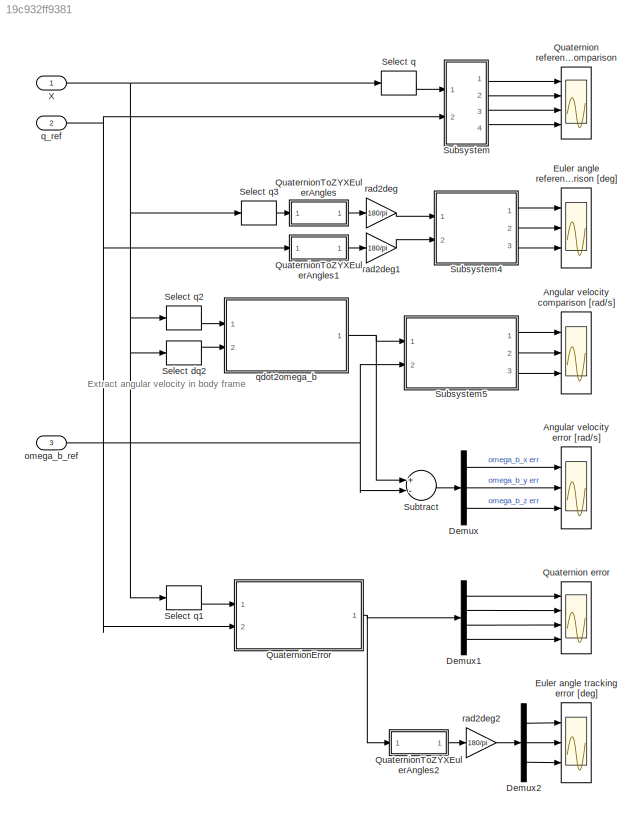
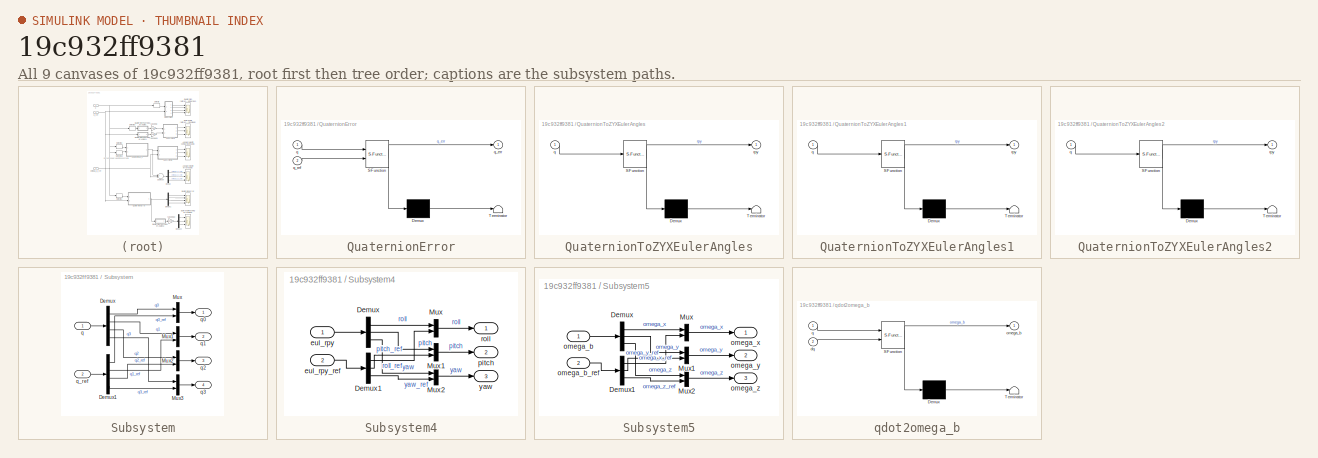
[diagram: thumbnail index - all 9 canvases of the model, root first then tree order]
MODEL slx_19c932ff9381
KIND model
CONFIG AbsTol = auto
CONFIG EnableMultiTasking = off
CONFIG FixedStep = auto
CONFIG MaxStep = auto
CONFIG MinStep = auto
CONFIG PreLoadFcn = modelDir = fileparts(get_param(bdroot, 'FileName'));\naddpath(fullfile(modelDir,'../../Misc'));
CONFIG RelTol = 1e-3
CONFIG SampleTimeConstraint = Unconstrained
CONFIG Solver = VariableStepAuto
CONFIG SolverName = VariableStepAuto
CONFIG StartTime = 0.0
CONFIG StopTime = 10.0
BLOCK [Scope] Angular velocity comparison [rad//s]
  Floating = off
  NumInputPorts = 3
  Ports = [3]
  ScopeSpecificationString = Simulink.scopes.TimeScopeBlockCfg('CurrentConfiguration', extmgr.ConfigurationSet(extmgr.Configuration('Core','General UI',true),extmgr.Configuration('Core','Source UI',true),extmgr.Configuration('Sources','WiredSimulink',true,'DataLoggingVariableName','ScopeData4'),extmgr.Configuration('Visuals','Time Domain',true,'SerializedDisplays',{struct('MinYLimReal','-0.22226','MaxYLimReal','0.19763','YLab...<+3129ch>
BLOCK [Scope] Angular velocity error [rad//s]
  Floating = off
  NumInputPorts = 3
  Ports = [3]
  ScopeSpecificationString = Simulink.scopes.TimeScopeBlockCfg('CurrentConfiguration', extmgr.ConfigurationSet(extmgr.Configuration('Core','General UI',true),extmgr.Configuration('Core','Source UI',true),extmgr.Configuration('Sources','WiredSimulink',true,'DataLoggingVariableName','ScopeData1'),extmgr.Configuration('Visuals','Time Domain',true,'SerializedDisplays',{struct('MinYLimReal','-0.60099','MaxYLimReal','0.09','YLabelR...<+3032ch>
BLOCK [Demux] Demux
  DisplayOption = bar
  Outputs = 3
  Ports = [1, 3]
BLOCK [Demux] Demux1
  DisplayOption = bar
  Ports = [1, 4]
BLOCK [Demux] Demux2
  DisplayOption = bar
  Outputs = 3
  Ports = [1, 3]
BLOCK [Scope] Euler angle reference comparison [deg]
  Floating = off
  NumInputPorts = 3
  Ports = [3]
  ScopeSpecificationString = Simulink.scopes.TimeScopeBlockCfg('CurrentConfiguration', extmgr.ConfigurationSet(extmgr.Configuration('Core','General UI',true),extmgr.Configuration('Core','Source UI',true),extmgr.Configuration('Sources','WiredSimulink',true,'DataLoggingVariableName','ScopeData5'),extmgr.Configuration('Visuals','Time Domain',true,'SerializedDisplays',{struct('MinYLimReal','-7.68613','MaxYLimReal','3.59927','YLab...<+3028ch>
BLOCK [Scope] Euler angle tracking error [deg]
  Floating = off
  NumInputPorts = 3
  Ports = [3]
  ScopeSpecificationString = Simulink.scopes.TimeScopeBlockCfg('CurrentConfiguration', extmgr.ConfigurationSet(extmgr.Configuration('Core','General UI',true),extmgr.Configuration('Core','Source UI',true),extmgr.Configuration('Sources','WiredSimulink',true,'DataLoggingVariableName','ScopeData3'),extmgr.Configuration('Visuals','Time Domain',true,'SerializedDisplays',{struct('MinYLimReal','-7.18854','MaxYLimReal','6.81311','YLab...<+2962ch>
BLOCK [Scope] Quaternion error
  Floating = off
  NumInputPorts = 4
  Ports = [4]
  ScopeSpecificationString = Simulink.scopes.TimeScopeBlockCfg('CurrentConfiguration', extmgr.ConfigurationSet(extmgr.Configuration('Core','General UI',true),extmgr.Configuration('Core','Source UI',true),extmgr.Configuration('Sources','WiredSimulink',true,'DataLoggingVariableName','ScopeData2'),extmgr.Configuration('Visuals','Time Domain',true,'SerializedDisplays',{struct('MinYLimReal','0.94837','MaxYLimReal','1.00568','YLabe...<+3688ch>
BLOCK [Scope] Quaternion reference comparison
  Floating = off
  NumInputPorts = 4
  Ports = [4]
  ScopeSpecificationString = Simulink.scopes.TimeScopeBlockCfg('CurrentConfiguration', extmgr.ConfigurationSet(extmgr.Configuration('Core','General UI',true),extmgr.Configuration('Core','Source UI',true),extmgr.Configuration('Sources','WiredSimulink',true),extmgr.Configuration('Visuals','Time Domain',true,'SerializedDisplays',{struct('MinYLimReal','0.94837','MaxYLimReal','1.00574','YLabelReal','','MinYLimMag','0.94837','MaxYL...<+3691ch>
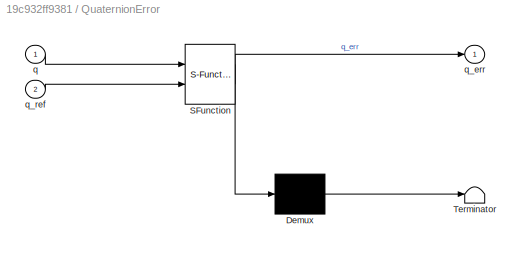
BLOCK [SubSystem] QuaternionError
  ErrorFcn = Stateflow.Translate.translate
  PermitHierarchicalResolution = ExplicitOnly
  Ports = [2, 1]
  RequestExecContextInheritance = off
  SFBlockType = MATLAB Function
  TreatAsAtomicUnit = on
BLOCK [Demux] QuaternionError/ Demux 
  Outputs = 1
  Ports = [1, 1]
BLOCK [S-Function] QuaternionError/ SFunction 
  EnableBusSupport = on
  FunctionName = sf_sfun
  PortCounts = [2 2]
  Ports = [2, 2]
  SFcnIsStateOwnerBlock = off
  SFunctionDeploymentMode = off
  Tag = Stateflow S-Function TrackingComparison 4
BLOCK [Terminator] QuaternionError/ Terminator 
BLOCK [Inport] QuaternionError/q
  IconDisplay = Port number
BLOCK [Outport] QuaternionError/q_err
  IconDisplay = Port number
BLOCK [Inport] QuaternionError/q_ref
  IconDisplay = Port number
  Port = 2
BLOCK [SubSystem] QuaternionToZYXEulerAngles
  ErrorFcn = Stateflow.Translate.translate
  PermitHierarchicalResolution = ExplicitOnly
  Ports = [1, 1]
  RequestExecContextInheritance = off
  SFBlockType = MATLAB Function
  TreatAsAtomicUnit = on
BLOCK [Demux] QuaternionToZYXEulerAngles/ Demux 
  Outputs = 1
  Ports = [1, 1]
BLOCK [S-Function] QuaternionToZYXEulerAngles/ SFunction 
  EnableBusSupport = on
  FunctionName = sf_sfun
  PortCounts = [1 2]
  Ports = [1, 2]
  SFcnIsStateOwnerBlock = off
  SFunctionDeploymentMode = off
  Tag = Stateflow S-Function TrackingComparison 1
BLOCK [Terminator] QuaternionToZYXEulerAngles/ Terminator 
BLOCK [Inport] QuaternionToZYXEulerAngles/q
  IconDisplay = Port number
BLOCK [Outport] QuaternionToZYXEulerAngles/rpy
  IconDisplay = Port number
BLOCK [SubSystem] QuaternionToZYXEulerAngles1
  ErrorFcn = Stateflow.Translate.translate
  PermitHierarchicalResolution = ExplicitOnly
  Ports = [1, 1]
  RequestExecContextInheritance = off
  SFBlockType = MATLAB Function
  TreatAsAtomicUnit = on
BLOCK [Demux] QuaternionToZYXEulerAngles1/ Demux 
  Outputs = 1
  Ports = [1, 1]
BLOCK [S-Function] QuaternionToZYXEulerAngles1/ SFunction 
  EnableBusSupport = on
  FunctionName = sf_sfun
  PortCounts = [1 2]
  Ports = [1, 2]
  SFcnIsStateOwnerBlock = off
  SFunctionDeploymentMode = off
  Tag = Stateflow S-Function TrackingComparison 2
BLOCK [Terminator] QuaternionToZYXEulerAngles1/ Terminator 
BLOCK [Inport] QuaternionToZYXEulerAngles1/q
  IconDisplay = Port number
BLOCK [Outport] QuaternionToZYXEulerAngles1/rpy
  IconDisplay = Port number
BLOCK [SubSystem] QuaternionToZYXEulerAngles2
  ErrorFcn = Stateflow.Translate.translate
  PermitHierarchicalResolution = ExplicitOnly
  Ports = [1, 1]
  RequestExecContextInheritance = off
  SFBlockType = MATLAB Function
  TreatAsAtomicUnit = on
BLOCK [Demux] QuaternionToZYXEulerAngles2/ Demux 
  Outputs = 1
  Ports = [1, 1]
BLOCK [S-Function] QuaternionToZYXEulerAngles2/ SFunction 
  EnableBusSupport = on
  FunctionName = sf_sfun
  PortCounts = [1 2]
  Ports = [1, 2]
  SFcnIsStateOwnerBlock = off
  SFunctionDeploymentMode = off
  Tag = Stateflow S-Function TrackingComparison 5
BLOCK [Terminator] QuaternionToZYXEulerAngles2/ Terminator 
BLOCK [Inport] QuaternionToZYXEulerAngles2/q
  IconDisplay = Port number
BLOCK [Outport] QuaternionToZYXEulerAngles2/rpy
  IconDisplay = Port number
BLOCK [Selector] Select dq2
  IndexOptions = Index vector (dialog)
  Indices = [9,10,11,12]
  InputPortWidth = 12
  OutputSizes = 1
  Ports = [1, 1]
BLOCK [Selector] Select q
  IndexOptions = Index vector (dialog)
  Indices = [3,4,5,6]
  InputPortWidth = 12
  OutputSizes = 1
  Ports = [1, 1]
BLOCK [Selector] Select q1
  IndexOptions = Index vector (dialog)
  Indices = [3,4,5,6]
  InputPortWidth = 12
  OutputSizes = 1
  Ports = [1, 1]
BLOCK [Selector] Select q2
  IndexOptions = Index vector (dialog)
  Indices = [3,4,5,6]
  InputPortWidth = 12
  OutputSizes = 1
  Ports = [1, 1]
BLOCK [Selector] Select q3
  IndexOptions = Index vector (dialog)
  Indices = [3,4,5,6]
  InputPortWidth = 12
  OutputSizes = 1
  Ports = [1, 1]
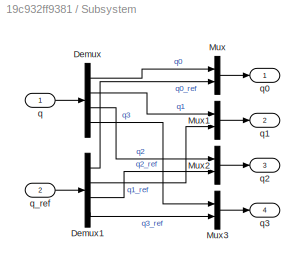
BLOCK [SubSystem] Subsystem
  Ports = [2, 4]
  RequestExecContextInheritance = off
BLOCK [Demux] Subsystem/Demux
  DisplayOption = bar
  Ports = [1, 4]
BLOCK [Demux] Subsystem/Demux1
  DisplayOption = bar
  Ports = [1, 4]
BLOCK [Mux] Subsystem/Mux
  DisplayOption = bar
  Inputs = 2
  Ports = [2, 1]
BLOCK [Mux] Subsystem/Mux1
  DisplayOption = bar
  Inputs = 2
  Ports = [2, 1]
BLOCK [Mux] Subsystem/Mux2
  DisplayOption = bar
  Inputs = 2
  Ports = [2, 1]
BLOCK [Mux] Subsystem/Mux3
  DisplayOption = bar
  Inputs = 2
  Ports = [2, 1]
BLOCK [Inport] Subsystem/q
  IconDisplay = Port number
BLOCK [Outport] Subsystem/q0
  IconDisplay = Port number
BLOCK [Outport] Subsystem/q1
  IconDisplay = Port number
  Port = 2
BLOCK [Outport] Subsystem/q2
  IconDisplay = Port number
  Port = 3
BLOCK [Outport] Subsystem/q3
  IconDisplay = Port number
  Port = 4
BLOCK [Inport] Subsystem/q_ref
  IconDisplay = Port number
  Port = 2
BLOCK [SubSystem] Subsystem4
  Ports = [2, 3]
  RequestExecContextInheritance = off
BLOCK [Demux] Subsystem4/Demux
  DisplayOption = bar
  Outputs = 3
  Ports = [1, 3]
BLOCK [Demux] Subsystem4/Demux1
  DisplayOption = bar
  Outputs = 3
  Ports = [1, 3]
BLOCK [Mux] Subsystem4/Mux
  DisplayOption = bar
  Inputs = 2
  Ports = [2, 1]
BLOCK [Mux] Subsystem4/Mux1
  DisplayOption = bar
  Inputs = 2
  Ports = [2, 1]
BLOCK [Mux] Subsystem4/Mux2
  DisplayOption = bar
  Inputs = 2
  Ports = [2, 1]
BLOCK [Inport] Subsystem4/eul_rpy
  IconDisplay = Port number
BLOCK [Inport] Subsystem4/eul_rpy_ref
  IconDisplay = Port number
  Port = 2
BLOCK [Outport] Subsystem4/pitch
  IconDisplay = Port number
  Port = 2
BLOCK [Outport] Subsystem4/roll
  IconDisplay = Port number
BLOCK [Outport] Subsystem4/yaw
  IconDisplay = Port number
  Port = 3
BLOCK [SubSystem] Subsystem5
  Ports = [2, 3]
  RequestExecContextInheritance = off
BLOCK [Demux] Subsystem5/Demux
  DisplayOption = bar
  Outputs = 3
  Ports = [1, 3]
BLOCK [Demux] Subsystem5/Demux1
  DisplayOption = bar
  Outputs = 3
  Ports = [1, 3]
BLOCK [Mux] Subsystem5/Mux
  DisplayOption = bar
  Inputs = 2
  Ports = [2, 1]
BLOCK [Mux] Subsystem5/Mux1
  DisplayOption = bar
  Inputs = 2
  Ports = [2, 1]
BLOCK [Mux] Subsystem5/Mux2
  DisplayOption = bar
  Inputs = 2
  Ports = [2, 1]
BLOCK [Inport] Subsystem5/omega_b
  IconDisplay = Port number
BLOCK [Inport] Subsystem5/omega_b_ref
  IconDisplay = Port number
  Port = 2
BLOCK [Outport] Subsystem5/omega_x
  IconDisplay = Port number
BLOCK [Outport] Subsystem5/omega_y
  IconDisplay = Port number
  Port = 2
BLOCK [Outport] Subsystem5/omega_z
  IconDisplay = Port number
  Port = 3
BLOCK [Sum] Subtract
  InputSameDT = off
  Inputs = +-
  OutDataTypeStr = Inherit: Inherit via internal rule
  Ports = [2, 1]
  SaturateOnIntegerOverflow = off
BLOCK [Inport] X
  IconDisplay = Port number
BLOCK [Inport] omega_b_ref
  IconDisplay = Port number
  Port = 3
BLOCK [Inport] q_ref
  IconDisplay = Port number
  Port = 2
BLOCK [SubSystem] qdot2omega_b
  ErrorFcn = Stateflow.Translate.translate
  PermitHierarchicalResolution = ExplicitOnly
  Ports = [2, 1]
  RequestExecContextInheritance = off
  SFBlockType = MATLAB Function
  TreatAsAtomicUnit = on
BLOCK [Demux] qdot2omega_b/ Demux 
  Outputs = 1
  Ports = [1, 1]
BLOCK [S-Function] qdot2omega_b/ SFunction 
  EnableBusSupport = on
  FunctionName = sf_sfun
  PortCounts = [2 2]
  Ports = [2, 2]
  SFcnIsStateOwnerBlock = off
  SFunctionDeploymentMode = off
  Tag = Stateflow S-Function TrackingComparison 3
BLOCK [Terminator] qdot2omega_b/ Terminator 
BLOCK [Inport] qdot2omega_b/dq
  IconDisplay = Port number
  Port = 2
BLOCK [Outport] qdot2omega_b/omega_b
  IconDisplay = Port number
BLOCK [Inport] qdot2omega_b/q
  IconDisplay = Port number
BLOCK [Gain] rad2deg
  Gain = 180/pi
  OutDataTypeStr = Inherit: Inherit via internal rule
  ParamDataTypeStr = Inherit: Inherit via internal rule
  SaturateOnIntegerOverflow = off
BLOCK [Gain] rad2deg1
  Gain = 180/pi
  OutDataTypeStr = Inherit: Inherit via internal rule
  ParamDataTypeStr = Inherit: Inherit via internal rule
  SaturateOnIntegerOverflow = off
BLOCK [Gain] rad2deg2
  Gain = 180/pi
  OutDataTypeStr = Inherit: Inherit via internal rule
  ParamDataTypeStr = Inherit: Inherit via internal rule
  SaturateOnIntegerOverflow = off
ANNOTATION (root): Extract angular velocity in body frame
LINE Demux1:1 -> Quaternion error:1
LINE Demux1:2 -> Quaternion error:2
LINE Demux1:3 -> Quaternion error:3
LINE Demux1:4 -> Quaternion error:4
LINE Demux2:1 -> Euler angle tracking error [deg]:1
LINE Demux2:2 -> Euler angle tracking error [deg]:2
LINE Demux2:3 -> Euler angle tracking error [deg]:3
LINE Demux:1 -> Angular velocity error [rad//s]:1
LINE Demux:2 -> Angular velocity error [rad//s]:2
LINE Demux:3 -> Angular velocity error [rad//s]:3
NET QuaternionError:1 -> Demux1:1, QuaternionToZYXEulerAngles2:1
LINE QuaternionToZYXEulerAngles1:1 -> rad2deg1:1
LINE QuaternionToZYXEulerAngles2:1 -> rad2deg2:1
LINE QuaternionToZYXEulerAngles:1 -> rad2deg:1
LINE Select dq2:1 -> qdot2omega_b:2
LINE Select q1:1 -> QuaternionError:1
LINE Select q2:1 -> qdot2omega_b:1
LINE Select q3:1 -> QuaternionToZYXEulerAngles:1
LINE Select q:1 -> Subsystem:1
LINE Subsystem/Demux1:1 -> Subsystem/Mux:2
LINE Subsystem/Demux1:2 -> Subsystem/Mux1:2
LINE Subsystem/Demux1:3 -> Subsystem/Mux2:2
LINE Subsystem/Demux1:4 -> Subsystem/Mux3:2
LINE Subsystem/Demux:1 -> Subsystem/Mux:1
LINE Subsystem/Demux:2 -> Subsystem/Mux1:1
LINE Subsystem/Demux:3 -> Subsystem/Mux2:1
LINE Subsystem/Demux:4 -> Subsystem/Mux3:1
LINE Subsystem/Mux1:1 -> Subsystem/q1:1
LINE Subsystem/Mux2:1 -> Subsystem/q2:1
LINE Subsystem/Mux3:1 -> Subsystem/q3:1
LINE Subsystem/Mux:1 -> Subsystem/q0:1
LINE Subsystem/q:1 -> Subsystem/Demux:1
LINE Subsystem/q_ref:1 -> Subsystem/Demux1:1
LINE Subsystem4/Demux1:1 -> Subsystem4/Mux:2
LINE Subsystem4/Demux1:2 -> Subsystem4/Mux1:2
LINE Subsystem4/Demux1:3 -> Subsystem4/Mux2:2
LINE Subsystem4/Demux:1 -> Subsystem4/Mux:1
LINE Subsystem4/Demux:2 -> Subsystem4/Mux1:1
LINE Subsystem4/Demux:3 -> Subsystem4/Mux2:1
LINE Subsystem4/Mux1:1 -> Subsystem4/pitch:1
LINE Subsystem4/Mux2:1 -> Subsystem4/yaw:1
LINE Subsystem4/Mux:1 -> Subsystem4/roll:1
LINE Subsystem4/eul_rpy:1 -> Subsystem4/Demux:1
LINE Subsystem4/eul_rpy_ref:1 -> Subsystem4/Demux1:1
LINE Subsystem4:1 -> Euler angle reference comparison [deg]:1
LINE Subsystem4:2 -> Euler angle reference comparison [deg]:2
LINE Subsystem4:3 -> Euler angle reference comparison [deg]:3
LINE Subsystem5/Demux1:1 -> Subsystem5/Mux:2
LINE Subsystem5/Demux1:2 -> Subsystem5/Mux1:2
LINE Subsystem5/Demux1:3 -> Subsystem5/Mux2:2
LINE Subsystem5/Demux:1 -> Subsystem5/Mux:1
LINE Subsystem5/Demux:2 -> Subsystem5/Mux1:1
LINE Subsystem5/Demux:3 -> Subsystem5/Mux2:1
LINE Subsystem5/Mux1:1 -> Subsystem5/omega_y:1
LINE Subsystem5/Mux2:1 -> Subsystem5/omega_z:1
LINE Subsystem5/Mux:1 -> Subsystem5/omega_x:1
LINE Subsystem5/omega_b:1 -> Subsystem5/Demux:1
LINE Subsystem5/omega_b_ref:1 -> Subsystem5/Demux1:1
LINE Subsystem5:1 -> Angular velocity comparison [rad//s]:1
LINE Subsystem5:2 -> Angular velocity comparison [rad//s]:2
LINE Subsystem5:3 -> Angular velocity comparison [rad//s]:3
LINE Subsystem:1 -> Quaternion reference comparison:1
LINE Subsystem:2 -> Quaternion reference comparison:2
LINE Subsystem:3 -> Quaternion reference comparison:3
LINE Subsystem:4 -> Quaternion reference comparison:4
LINE Subtract:1 -> Demux:1
NET X:1 -> Select dq2:1, Select q1:1, Select q2:1, Select q3:1, Select q:1
NET omega_b_ref:1 -> Subsystem5:2, Subtract:2
NET q_ref:1 -> QuaternionError:2, QuaternionToZYXEulerAngles1:1, Subsystem:2
NET qdot2omega_b:1 -> Subsystem5:1, Subtract:1
LINE rad2deg1:1 -> Subsystem4:2
LINE rad2deg2:1 -> Demux2:1
LINE rad2deg:1 -> Subsystem4:1
note: NET lines group one-source signal fan-out (src -> all destinations, sorted); 1:1 wires keep LINE
CHART QuaternionToZYXEulerAngles states=1 transitions=1
  STATE_LABEL 'eML_blk_kernel()'
  STATE_LABEL 'SCRIPT:\nfunction rpy = Quaternion2ZYXEulerAngles(q)\n    rpy = Quaternion2ZYXEulerAngles(q);\nend'
CHART QuaternionToZYXEulerAngles1 states=1 transitions=1
  STATE_LABEL 'eML_blk_kernel()'
  STATE_LABEL 'SCRIPT:\nfunction rpy = Quaternion2ZYXEulerAngles(q)\n    rpy = Quaternion2ZYXEulerAngles(q);\nend'
CHART qdot2omega_b states=1 transitions=1
  STATE_LABEL 'eML_blk_kernel()'
  STATE_LABEL 'SCRIPT:\nfunction omega_b = qdot2omega_b(q, dq)\n    omega_b = qdot2omega_b(q, dq);\nend'
CHART QuaternionError states=1 transitions=1
  STATE_LABEL 'eML_blk_kernel()'
  STATE_LABEL 'SCRIPT:\nfunction q_err = QuaternionError(q, q_ref)\n    q_err = QuaternionError(q, q_ref);\nend\n'
CHART QuaternionToZYXEulerAngles2 states=1 transitions=1
  STATE_LABEL 'eML_blk_kernel()'
  STATE_LABEL 'SCRIPT:\nfunction rpy = Quaternion2ZYXEulerAngles(q)\n    rpy = Quaternion2ZYXEulerAngles(q);\nend'
